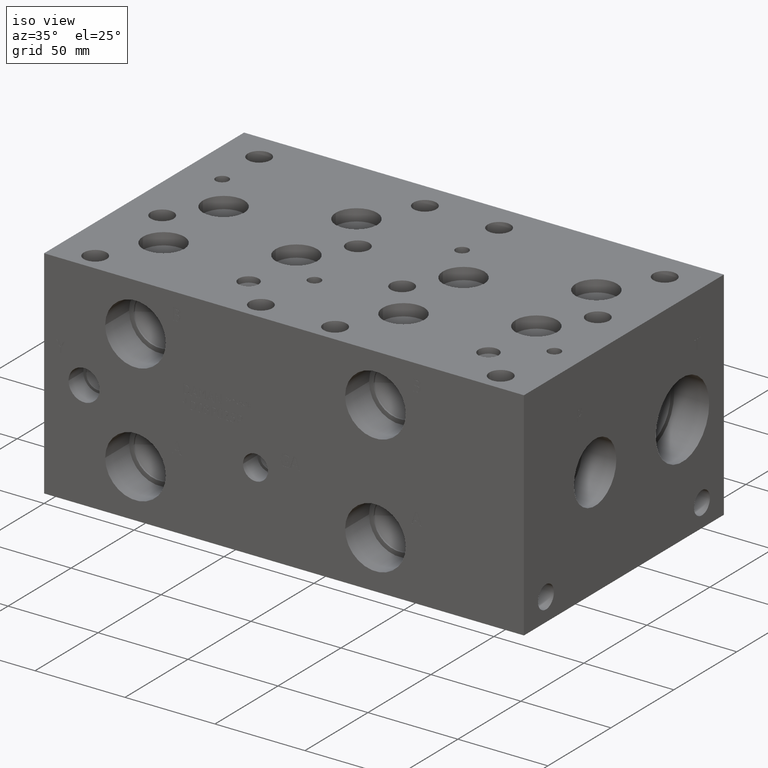
[diagram: clean part render]
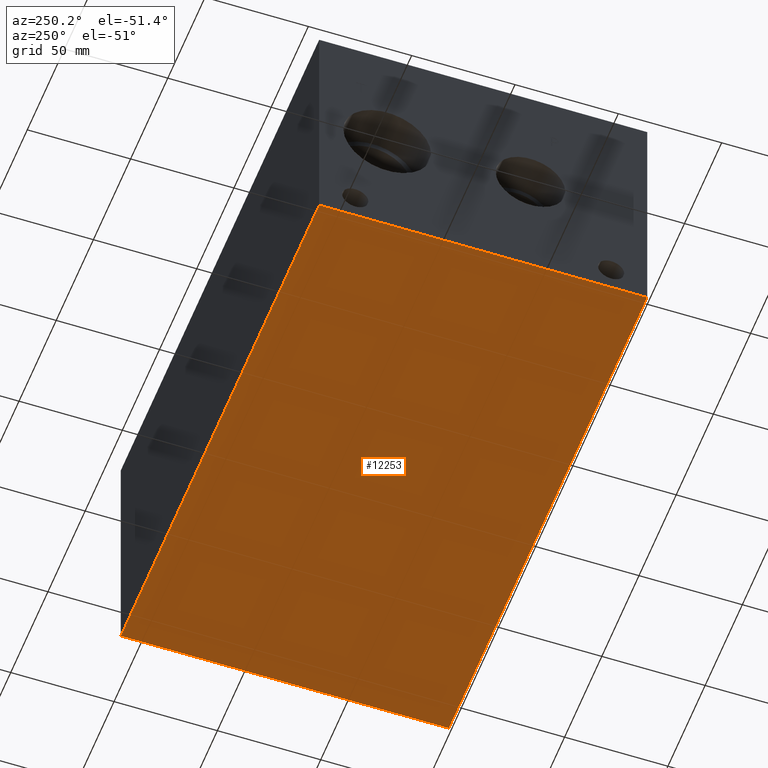
[diagram: tour spotlight — one face highlighted and labeled with its STEP entity id]
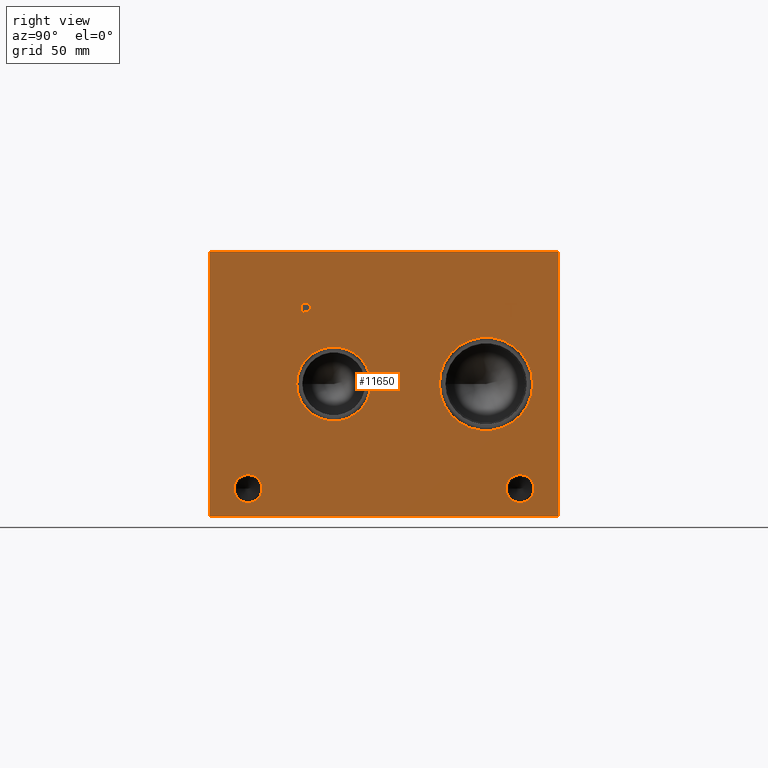
[diagram: tour spotlight — one face highlighted and labeled with its STEP entity id]
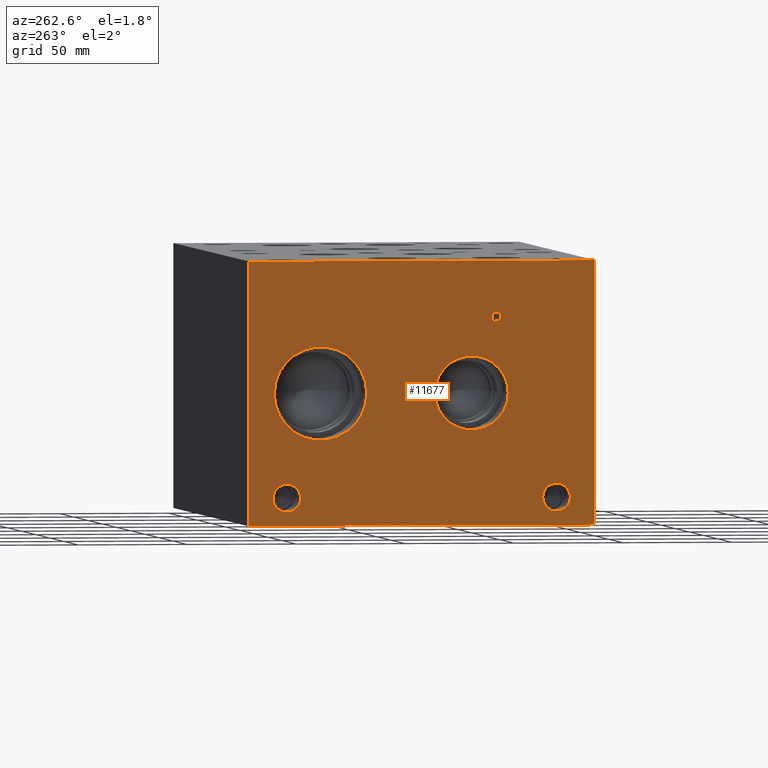
[diagram: tour spotlight — one face highlighted and labeled with its STEP entity id]
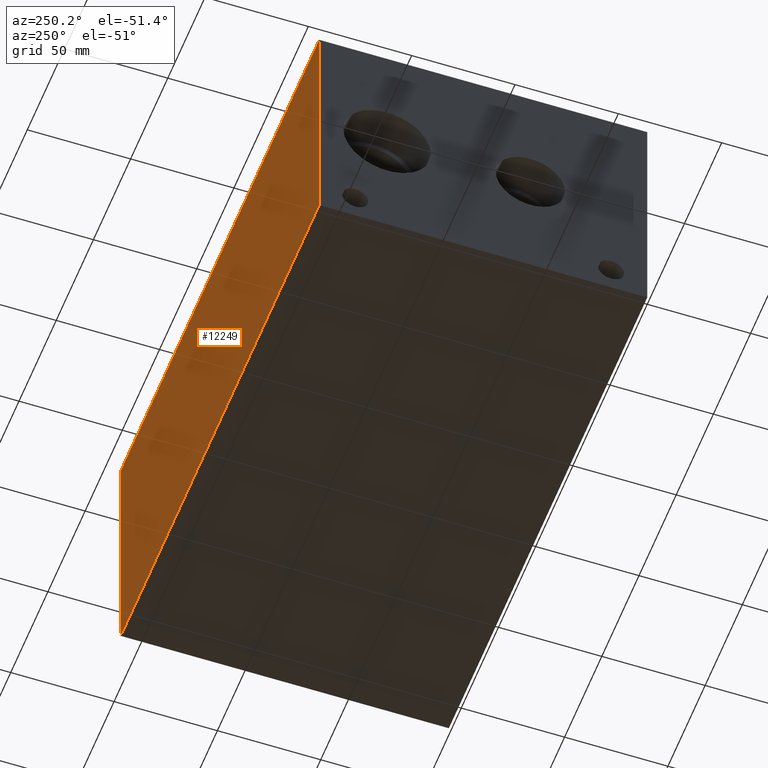
[diagram: tour spotlight — one face highlighted and labeled with its STEP entity id]
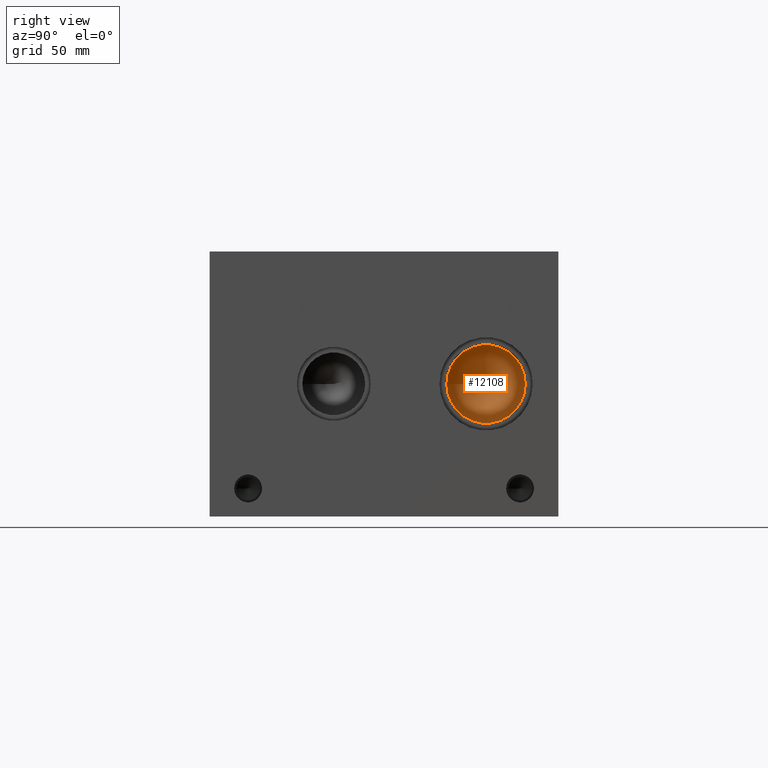
[diagram: tour spotlight — one face highlighted and labeled with its STEP entity id]
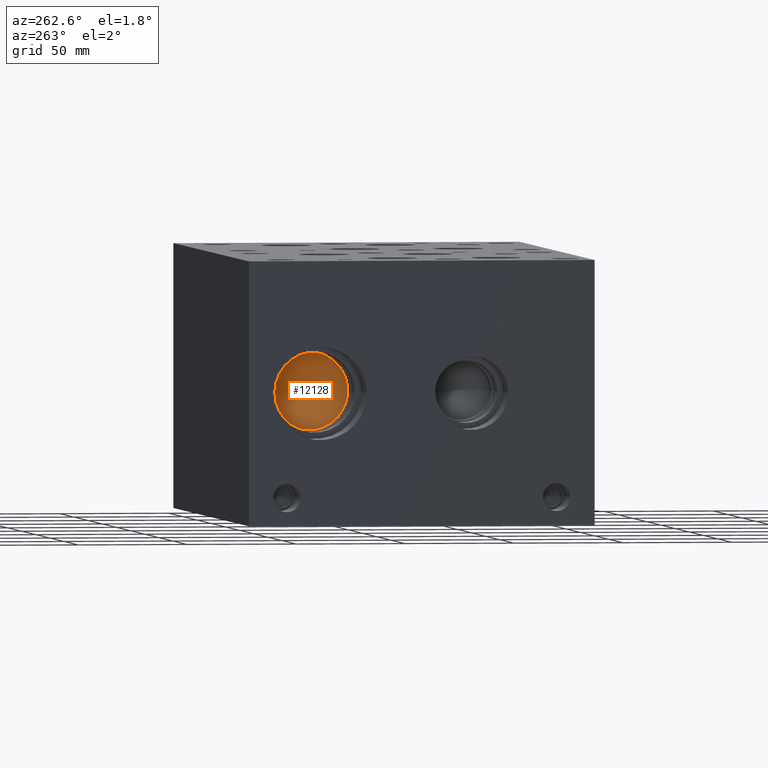
[diagram: tour spotlight — one face highlighted and labeled with its STEP entity id]
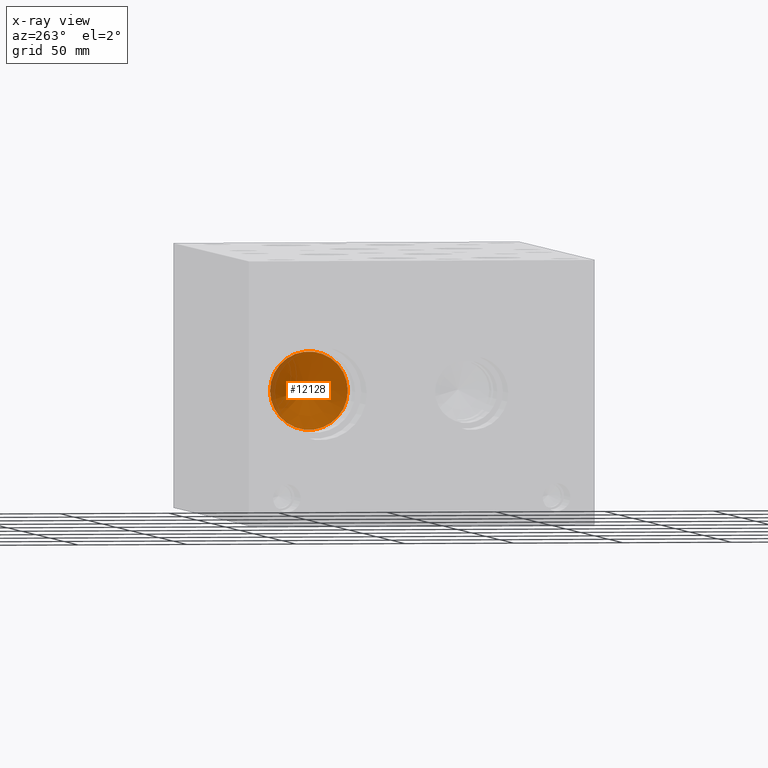
[diagram: x-ray of the same camera — body ghosted, this tour face saturated]
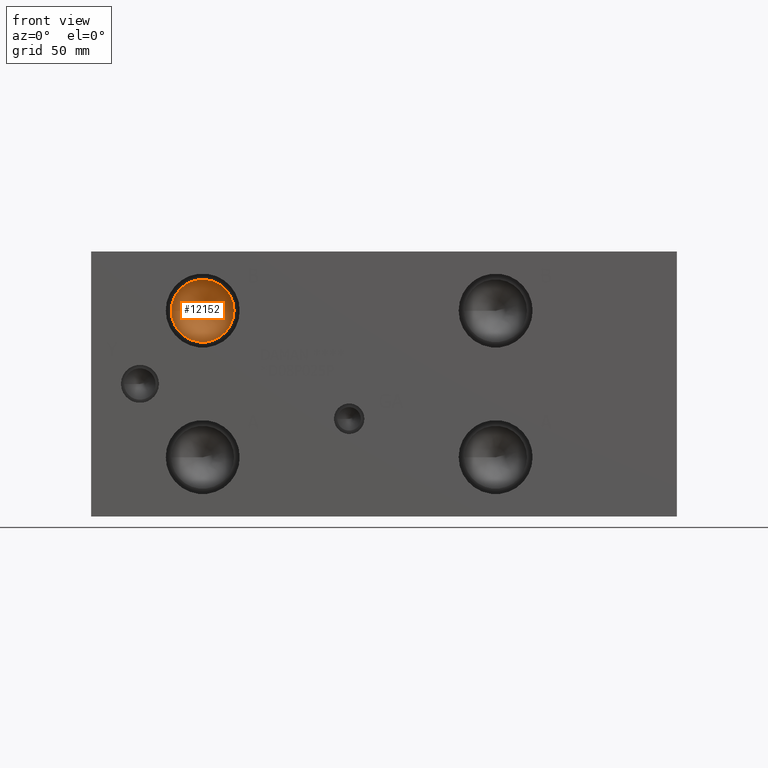
[diagram: tour spotlight — one face highlighted and labeled with its STEP entity id]
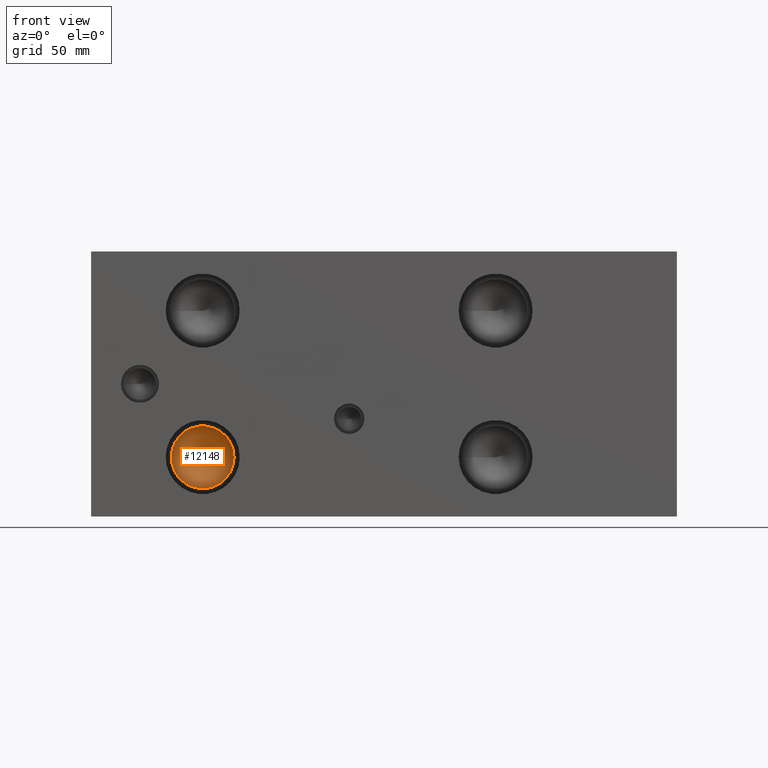
[diagram: tour spotlight — one face highlighted and labeled with its STEP entity id]
A machine part: a face-by-face anatomy tour. The part has 630 B-rep faces; the first image is the clean iso view, then the 8 largest visible faces are spotlighted one at a time (largest first), each with its STEP entity span.

Face 1 — auxiliary view, entity #12253. In plain terms, the highlighted planar face has unit normal (0, 0, 1).
Definition (entity closure, byte-faithful):
#1592=FACE_OUTER_BOUND('',#2336,.T.);
#2336=EDGE_LOOP('',(#10795,#10796,#10797,#10798));
#2393=LINE('',#15813,#3513);
#2453=LINE('',#16088,#3573);
#2713=LINE('',#18179,#3833);
#3455=LINE('',#21079,#4575);
#3513=VECTOR('',#13087,10.);
#3573=VECTOR('',#13201,10.);
#3833=VECTOR('',#13607,10.);
#4575=VECTOR('',#15549,10.);
#4625=VERTEX_POINT('',#15811);
#4626=VERTEX_POINT('',#15812);
#4685=VERTEX_POINT('',#16086);
#4686=VERTEX_POINT('',#16087);
#5819=EDGE_CURVE('',#4625,#4626,#2393,.T.);
#5903=EDGE_CURVE('',#4685,#4686,#2453,.T.);
#6353=EDGE_CURVE('',#4686,#4625,#2713,.T.);
#7429=EDGE_CURVE('',#4626,#4685,#3455,.T.);
#10795=ORIENTED_EDGE('',*,*,#6353,.F.);
#10796=ORIENTED_EDGE('',*,*,#5903,.F.);
#10797=ORIENTED_EDGE('',*,*,#7429,.F.);
#10798=ORIENTED_EDGE('',*,*,#5819,.F.);
#11157=PLANE('',#12990);
#12253=ADVANCED_FACE('',(#1592),#11157,.F.);
#12990=AXIS2_PLACEMENT_3D('',#21084,#15557,#15558);
#13087=DIRECTION('',(0.,1.,0.));
#13201=DIRECTION('',(0.,-1.,0.));
#13607=DIRECTION('',(1.,0.,0.));
#15549=DIRECTION('',(-1.,0.,0.));
#15557=DIRECTION('center_axis',(0.,0.,1.));
#15558=DIRECTION('ref_axis',(1.,0.,0.));
#15811=CARTESIAN_POINT('',(266.7,0.,0.));
#15812=CARTESIAN_POINT('',(266.7,158.75,0.));
#15813=CARTESIAN_POINT('',(266.7,0.,0.));
#16086=CARTESIAN_POINT('',(0.,158.75,0.));
#16087=CARTESIAN_POINT('',(0.,0.,0.));
#16088=CARTESIAN_POINT('',(0.,158.75,0.));
#18179=CARTESIAN_POINT('',(0.,0.,0.));
#21079=CARTESIAN_POINT('',(266.7,158.75,0.));
#21084=CARTESIAN_POINT('Origin',(133.35,79.375,0.));

Face 2 — right view, entity #11650. In plain terms, the highlighted planar face has unit normal (1, 0, 0).
Definition (entity closure, byte-faithful):
#128=CIRCLE('',#12287,6.35);
#129=CIRCLE('',#12288,6.35);
#130=CIRCLE('',#12289,6.35);
#131=CIRCLE('',#12290,6.35);
#132=CIRCLE('',#12291,16.8529);
#133=CIRCLE('',#12292,16.8529);
#134=CIRCLE('',#12293,21.2344);
#135=CIRCLE('',#12294,21.2344);
#379=FACE_BOUND('',#1621,.T.);
#380=FACE_BOUND('',#1622,.T.);
#381=FACE_BOUND('',#1623,.T.);
#382=FACE_BOUND('',#1624,.T.);
#383=FACE_BOUND('',#1625,.T.);
#384=FACE_BOUND('',#1626,.T.);
#500=B_SPLINE_CURVE_WITH_KNOTS('',2,(#15713,#15714,#15715,#15716),
 .UNSPECIFIED.,.F.,.F.,(3,1,3),(0.,1.,2.),.UNSPECIFIED.);
#502=B_SPLINE_CURVE_WITH_KNOTS('',2,(#15734,#15735,#15736,#15737),
 .UNSPECIFIED.,.F.,.F.,(3,1,3),(0.,1.,2.),.UNSPECIFIED.);
#504=B_SPLINE_CURVE_WITH_KNOTS('',2,(#15783,#15784,#15785,#15786),
 .UNSPECIFIED.,.F.,.F.,(3,1,3),(0.,1.,2.),.UNSPECIFIED.);
#506=B_SPLINE_CURVE_WITH_KNOTS('',2,(#15801,#15802,#15803,#15804),
 .UNSPECIFIED.,.F.,.F.,(3,1,3),(0.,1.,2.),.UNSPECIFIED.);
#989=FACE_OUTER_BOUND('',#1620,.T.);
#1620=EDGE_LOOP('',(#7551,#7552,#7553,#7554));
#1621=EDGE_LOOP('',(#7555,#7556,#7557,#7558,#7559,#7560,#7561,#7562));
#1622=EDGE_LOOP('',(#7563,#7564));
#1623=EDGE_LOOP('',(#7565,#7566));
#1624=EDGE_LOOP('',(#7567,#7568));
#1625=EDGE_LOOP('',(#7569,#7570));
#1626=EDGE_LOOP('',(#7571,#7572,#7573,#7574,#7575,#7576,#7577,#7578,#7579));
#2337=LINE('',#15563,#3457);
#2341=LINE('',#15571,#3461);
#2344=LINE('',#15577,#3464);
#2347=LINE('',#15583,#3467);
#2350=LINE('',#15589,#3470);
#2353=LINE('',#15595,#3473);
#2356=LINE('',#15601,#3476);
#2359=LINE('',#15606,#3479);
#2377=LINE('',#15746,#3497);
#2380=LINE('',#15752,#3500);
#2383=LINE('',#15758,#3503);
#2386=LINE('',#15764,#3506);
#2389=LINE('',#15770,#3509);
#2393=LINE('',#15813,#3513);
#2394=LINE('',#15815,#3514);
#2395=LINE('',#15817,#3515);
#2396=LINE('',#15818,#3516);
#3457=VECTOR('',#12995,10.);
#3461=VECTOR('',#13001,10.);
#3464=VECTOR('',#13006,10.);
#3467=VECTOR('',#13011,10.);
#3470=VECTOR('',#13016,10.);
#3473=VECTOR('',#13021,10.);
#3476=VECTOR('',#13026,10.);
#3479=VECTOR('',#13031,10.);
#3497=VECTOR('',#13059,10.);
#3500=VECTOR('',#13064,10.);
#3503=VECTOR('',#13069,10.);
#3506=VECTOR('',#13074,10.);
#3509=VECTOR('',#13079,10.);
#3513=VECTOR('',#13087,10.);
#3514=VECTOR('',#13088,10.);
#3515=VECTOR('',#13089,10.);
#3516=VECTOR('',#13090,10.);
#4577=VERTEX_POINT('',#15561);
#4578=VERTEX_POINT('',#15562);
#4581=VERTEX_POINT('',#15570);
#4583=VERTEX_POINT('',#15576);
#4585=VERTEX_POINT('',#15582);
#4587=VERTEX_POINT('',#15588);
#4589=VERTEX_POINT('',#15594);
#4591=VERTEX_POINT('',#15600);
#4607=VERTEX_POINT('',#15711);
#4608=VERTEX_POINT('',#15712);
#4611=VERTEX_POINT('',#15733);
#4613=VERTEX_POINT('',#15745);
#4615=VERTEX_POINT('',#15751);
#4617=VERTEX_POINT('',#15757);
#4619=VERTEX_POINT('',#15763);
#4621=VERTEX_POINT('',#15769);
#4623=VERTEX_POINT('',#15782);
#4625=VERTEX_POINT('',#15811);
#4626=VERTEX_POINT('',#15812);
#4627=VERTEX_POINT('',#15814);
#4628=VERTEX_POINT('',#15816);
#4629=VERTEX_POINT('',#15819);
#4630=VERTEX_POINT('',#15820);
#4631=VERTEX_POINT('',#15823);
#4632=VERTEX_POINT('',#15824);
#4633=VERTEX_POINT('',#15827);
#4634=VERTEX_POINT('',#15828);
#4635=VERTEX_POINT('',#15831);
#4636=VERTEX_POINT('',#15832);
#5747=EDGE_CURVE('',#4577,#4578,#2337,.T.);
#5751=EDGE_CURVE('',#4581,#4577,#2341,.T.);
#5754=EDGE_CURVE('',#4583,#4581,#2344,.T.);
#5757=EDGE_CURVE('',#4585,#4583,#2347,.T.);
#5760=EDGE_CURVE('',#4587,#4585,#2350,.T.);
#5763=EDGE_CURVE('',#4589,#4587,#2353,.T.);
#5766=EDGE_CURVE('',#4591,#4589,#2356,.T.);
#5769=EDGE_CURVE('',#4578,#4591,#2359,.T.);
#5792=EDGE_CURVE('',#4607,#4608,#500,.T.);
#5796=EDGE_CURVE('',#4611,#4607,#502,.T.);
#5799=EDGE_CURVE('',#4613,#4611,#2377,.T.);
#5802=EDGE_CURVE('',#4615,#4613,#2380,.T.);
#5805=EDGE_CURVE('',#4617,#4615,#2383,.T.);
#5808=EDGE_CURVE('',#4619,#4617,#2386,.T.);
#5811=EDGE_CURVE('',#4621,#4619,#2389,.T.);
#5814=EDGE_CURVE('',#4623,#4621,#504,.T.);
#5817=EDGE_CURVE('',#4608,#4623,#506,.T.);
#5819=EDGE_CURVE('',#4625,#4626,#2393,.T.);
#5820=EDGE_CURVE('',#4626,#4627,#2394,.T.);
#5821=EDGE_CURVE('',#4628,#4627,#2395,.T.);
#5822=EDGE_CURVE('',#4625,#4628,#2396,.T.);
#5823=EDGE_CURVE('',#4629,#4630,#128,.T.);
#5824=EDGE_CURVE('',#4630,#4629,#129,.T.);
#5825=EDGE_CURVE('',#4631,#4632,#130,.T.);
#5826=EDGE_CURVE('',#4632,#4631,#131,.T.);
#5827=EDGE_CURVE('',#4633,#4634,#132,.T.);
#5828=EDGE_CURVE('',#4634,#4633,#133,.T.);
#5829=EDGE_CURVE('',#4635,#4636,#134,.T.);
#5830=EDGE_CURVE('',#4636,#4635,#135,.T.);
#7551=ORIENTED_EDGE('',*,*,#5819,.T.);
#7552=ORIENTED_EDGE('',*,*,#5820,.T.);
#7553=ORIENTED_EDGE('',*,*,#5821,.F.);
#7554=ORIENTED_EDGE('',*,*,#5822,.F.);
#7555=ORIENTED_EDGE('',*,*,#5747,.T.);
#7556=ORIENTED_EDGE('',*,*,#5769,.T.);
#7557=ORIENTED_EDGE('',*,*,#5766,.T.);
#7558=ORIENTED_EDGE('',*,*,#5763,.T.);
#7559=ORIENTED_EDGE('',*,*,#5760,.T.);
#7560=ORIENTED_EDGE('',*,*,#5757,.T.);
#7561=ORIENTED_EDGE('',*,*,#5754,.T.);
#7562=ORIENTED_EDGE('',*,*,#5751,.T.);
#7563=ORIENTED_EDGE('',*,*,#5823,.T.);
#7564=ORIENTED_EDGE('',*,*,#5824,.T.);
#7565=ORIENTED_EDGE('',*,*,#5825,.T.);
#7566=ORIENTED_EDGE('',*,*,#5826,.T.);
#7567=ORIENTED_EDGE('',*,*,#5827,.T.);
#7568=ORIENTED_EDGE('',*,*,#5828,.T.);
#7569=ORIENTED_EDGE('',*,*,#5829,.T.);
#7570=ORIENTED_EDGE('',*,*,#5830,.T.);
#7571=ORIENTED_EDGE('',*,*,#5792,.T.);
#7572=ORIENTED_EDGE('',*,*,#5817,.T.);
#7573=ORIENTED_EDGE('',*,*,#5814,.T.);
#7574=ORIENTED_EDGE('',*,*,#5811,.T.);
#7575=ORIENTED_EDGE('',*,*,#5808,.T.);
#7576=ORIENTED_EDGE('',*,*,#5805,.T.);
#7577=ORIENTED_EDGE('',*,*,#5802,.T.);
#7578=ORIENTED_EDGE('',*,*,#5799,.T.);
#7579=ORIENTED_EDGE('',*,*,#5796,.T.);
#10817=PLANE('',#12286);
#11650=ADVANCED_FACE('',(#989,#379,#380,#381,#382,#383,#384),#10817,.T.);
#12286=AXIS2_PLACEMENT_3D('',#15810,#13085,#13086);
#12287=AXIS2_PLACEMENT_3D('',#15821,#13091,#13092);
#12288=AXIS2_PLACEMENT_3D('',#15822,#13093,#13094);
#12289=AXIS2_PLACEMENT_3D('',#15825,#13095,#13096);
#12290=AXIS2_PLACEMENT_3D('',#15826,#13097,#13098);
#12291=AXIS2_PLACEMENT_3D('',#15829,#13099,#13100);
#12292=AXIS2_PLACEMENT_3D('',#15830,#13101,#13102);
#12293=AXIS2_PLACEMENT_3D('',#15833,#13103,#13104);
#12294=AXIS2_PLACEMENT_3D('',#15834,#13105,#13106);
#12995=DIRECTION('',(0.,-1.,0.));
#13001=DIRECTION('',(0.,0.,-1.));
#13006=DIRECTION('',(0.,-1.,0.));
#13011=DIRECTION('',(0.,0.,-1.));
#13016=DIRECTION('',(0.,1.,0.));
#13021=DIRECTION('',(0.,0.,1.));
#13026=DIRECTION('',(0.,-1.,0.));
#13031=DIRECTION('',(0.,0.,1.));
#13059=DIRECTION('',(0.,1.,0.));
#13064=DIRECTION('',(0.,0.,1.));
#13069=DIRECTION('',(0.,-1.,0.));
#13074=DIRECTION('',(0.,0.,-1.));
#13079=DIRECTION('',(0.,-1.,0.));
#13085=DIRECTION('center_axis',(1.,0.,0.));
#13086=DIRECTION('ref_axis',(0.,1.,0.));
#13087=DIRECTION('',(0.,1.,0.));
#13088=DIRECTION('',(0.,0.,1.));
#13089=DIRECTION('',(0.,1.,0.));
#13090=DIRECTION('',(0.,0.,1.));
#13091=DIRECTION('center_axis',(-1.,0.,0.));
#13092=DIRECTION('ref_axis',(0.,1.,0.));
#13093=DIRECTION('center_axis',(-1.,0.,0.));
#13094=DIRECTION('ref_axis',(0.,1.,0.));
#13095=DIRECTION('center_axis',(-1.,0.,0.));
#13096=DIRECTION('ref_axis',(0.,1.,0.));
#13097=DIRECTION('center_axis',(-1.,0.,0.));
#13098=DIRECTION('ref_axis',(0.,1.,0.));
#13099=DIRECTION('center_axis',(-1.,0.,0.));
#13100=DIRECTION('ref_axis',(0.,1.,0.));
#13101=DIRECTION('center_axis',(-1.,0.,0.));
#13102=DIRECTION('ref_axis',(0.,1.,0.));
#13103=DIRECTION('center_axis',(-1.,0.,0.));
#13104=DIRECTION('ref_axis',(0.,1.,0.));
#13105=DIRECTION('center_axis',(-1.,0.,0.));
#13106=DIRECTION('ref_axis',(0.,1.,0.));
#15561=CARTESIAN_POINT('',(266.7,137.690765271453,90.805));
#15562=CARTESIAN_POINT('',(266.7,136.846843079913,90.805));
#15563=CARTESIAN_POINT('',(266.7,68.8453826357265,90.805));
#15570=CARTESIAN_POINT('',(266.7,137.690765271453,96.4037033194816));
#15571=CARTESIAN_POINT('',(266.7,137.690765271453,48.2018516597408));
#15576=CARTESIAN_POINT('',(266.7,139.821154218388,96.4037033194816));
#15577=CARTESIAN_POINT('',(266.7,69.910577109194,96.4037033194816));
#15582=CARTESIAN_POINT('',(266.7,139.821154218388,97.1549999046326));
#15583=CARTESIAN_POINT('',(266.7,139.821154218388,48.5774999523163));
#15588=CARTESIAN_POINT('',(266.7,134.716454132978,97.1549999046326));
#15589=CARTESIAN_POINT('',(266.7,67.3582270664892,97.1549999046326));
#15594=CARTESIAN_POINT('',(266.7,134.716454132978,96.4037033194816));
#15595=CARTESIAN_POINT('',(266.7,134.716454132978,48.2018516597408));
#15600=CARTESIAN_POINT('',(266.7,136.846843079913,96.4037033194816));
#15601=CARTESIAN_POINT('',(266.7,68.4234215399567,96.4037033194816));
#15606=CARTESIAN_POINT('',(266.7,136.846843079913,45.4025));
#15711=CARTESIAN_POINT('',(266.7,45.1501672023594,96.7587681439707));
#15712=CARTESIAN_POINT('',(266.7,45.906609654532,95.240737372604));
#15713=CARTESIAN_POINT('Ctrl Pts',(266.7,45.1501672023594,96.7587681439707));
#15714=CARTESIAN_POINT('Ctrl Pts',(266.7,45.5052320268486,96.5169123939564));
#15715=CARTESIAN_POINT('Ctrl Pts',(266.7,45.906609654532,95.7707616758269));
#15716=CARTESIAN_POINT('Ctrl Pts',(266.7,45.906609654532,95.240737372604));
#15733=CARTESIAN_POINT('',(266.7,43.4880521543883,97.1549999046326));
#15734=CARTESIAN_POINT('Ctrl Pts',(266.7,43.4880521543883,97.1549999046326));
#15735=CARTESIAN_POINT('Ctrl Pts',(266.7,44.0540975267624,97.1549999046326));
#15736=CARTESIAN_POINT('Ctrl Pts',(266.7,44.846561048086,96.9697486918556));
#15737=CARTESIAN_POINT('Ctrl Pts',(266.7,45.1501672023594,96.7587681439707));
#15745=CARTESIAN_POINT('',(266.7,41.8928333776978,97.1549999046326));
#15746=CARTESIAN_POINT('',(266.7,20.9464166888489,97.1549999046326));
#15751=CARTESIAN_POINT('',(266.7,41.8928333776978,90.805));
#15752=CARTESIAN_POINT('',(266.7,41.8928333776978,45.4025));
#15757=CARTESIAN_POINT('',(266.7,42.7367555692373,90.805));
#15758=CARTESIAN_POINT('',(266.7,21.3683777846186,90.805));
#15763=CARTESIAN_POINT('',(266.7,42.7367555692373,93.1720988299279));
#15764=CARTESIAN_POINT('',(266.7,42.7367555692373,46.5860494149639));
#15769=CARTESIAN_POINT('',(266.7,43.4520310852372,93.1720988299279));
#15770=CARTESIAN_POINT('',(266.7,21.7260155426186,93.1720988299279));
#15782=CARTESIAN_POINT('',(266.7,45.3508560162011,93.8307698086904));
#15783=CARTESIAN_POINT('Ctrl Pts',(266.7,45.3508560162011,93.8307698086904));
#15784=CARTESIAN_POINT('Ctrl Pts',(266.7,45.0215205268198,93.5065801863307));
#15785=CARTESIAN_POINT('Ctrl Pts',(266.7,44.1312855320861,93.1720988299279));
#15786=CARTESIAN_POINT('Ctrl Pts',(266.7,43.4520310852372,93.1720988299279));
#15801=CARTESIAN_POINT('Ctrl Pts',(266.7,45.906609654532,95.240737372604));
#15802=CARTESIAN_POINT('Ctrl Pts',(266.7,45.906609654532,94.8290680108774));
#15803=CARTESIAN_POINT('Ctrl Pts',(266.7,45.6132952343018,94.0880631597695));
#15804=CARTESIAN_POINT('Ctrl Pts',(266.7,45.3508560162011,93.8307698086904));
#15810=CARTESIAN_POINT('Origin',(266.7,0.,0.));
#15811=CARTESIAN_POINT('',(266.7,0.,0.));
#15812=CARTESIAN_POINT('',(266.7,158.75,0.));
#15813=CARTESIAN_POINT('',(266.7,0.,0.));
#15814=CARTESIAN_POINT('',(266.7,158.75,120.65));
#15815=CARTESIAN_POINT('',(266.7,158.75,0.));
#15816=CARTESIAN_POINT('',(266.7,0.,120.65));
#15817=CARTESIAN_POINT('',(266.7,0.,120.65));
#15818=CARTESIAN_POINT('',(266.7,0.,0.));
#15819=CARTESIAN_POINT('',(266.7,147.6502,12.7));
#15820=CARTESIAN_POINT('',(266.7,134.9502,12.7));
#15821=CARTESIAN_POINT('Origin',(266.7,141.3002,12.7));
#15822=CARTESIAN_POINT('Origin',(266.7,141.3002,12.7));
#15823=CARTESIAN_POINT('',(266.7,23.8252,12.7));
#15824=CARTESIAN_POINT('',(266.7,11.1252,12.7));
#15825=CARTESIAN_POINT('Origin',(266.7,17.4752,12.7));
#15826=CARTESIAN_POINT('Origin',(266.7,17.4752,12.7));
#15827=CARTESIAN_POINT('',(266.7,73.3425,60.325));
#15828=CARTESIAN_POINT('',(266.7,39.6367,60.325));
#15829=CARTESIAN_POINT('Origin',(266.7,56.4896,60.325));
#15830=CARTESIAN_POINT('Origin',(266.7,56.4896,60.325));
#15831=CARTESIAN_POINT('',(266.7,147.066,60.325));
#15832=CARTESIAN_POINT('',(266.7,104.5972,60.325));
#15833=CARTESIAN_POINT('Origin',(266.7,125.8316,60.325));
#15834=CARTESIAN_POINT('Origin',(266.7,125.8316,60.325));

Face 3 — auxiliary view, entity #11677. In plain terms, the highlighted planar face has unit normal (-1, 0, 0).
Definition (entity closure, byte-faithful):
#136=CIRCLE('',#12314,6.35);
#137=CIRCLE('',#12315,6.35);
#138=CIRCLE('',#12316,6.35);
#139=CIRCLE('',#12317,6.35);
#140=CIRCLE('',#12318,16.8529);
#141=CIRCLE('',#12319,16.8529);
#142=CIRCLE('',#12320,21.2344);
#143=CIRCLE('',#12321,21.2344);
#386=FACE_BOUND('',#1655,.T.);
#387=FACE_BOUND('',#1656,.T.);
#388=FACE_BOUND('',#1657,.T.);
#389=FACE_BOUND('',#1658,.T.);
#390=FACE_BOUND('',#1659,.T.);
#391=FACE_BOUND('',#1660,.T.);
#516=B_SPLINE_CURVE_WITH_KNOTS('',2,(#15988,#15989,#15990,#15991),
 .UNSPECIFIED.,.F.,.F.,(3,1,3),(0.,1.,2.),.UNSPECIFIED.);
#518=B_SPLINE_CURVE_WITH_KNOTS('',2,(#16009,#16010,#16011,#16012),
 .UNSPECIFIED.,.F.,.F.,(3,1,3),(0.,1.,2.),.UNSPECIFIED.);
#520=B_SPLINE_CURVE_WITH_KNOTS('',2,(#16058,#16059,#16060,#16061),
 .UNSPECIFIED.,.F.,.F.,(3,1,3),(0.,1.,2.),.UNSPECIFIED.);
#522=B_SPLINE_CURVE_WITH_KNOTS('',2,(#16076,#16077,#16078,#16079),
 .UNSPECIFIED.,.F.,.F.,(3,1,3),(0.,1.,2.),.UNSPECIFIED.);
#1016=FACE_OUTER_BOUND('',#1654,.T.);
#1654=EDGE_LOOP('',(#7700,#7701,#7702,#7703));
#1655=EDGE_LOOP('',(#7704,#7705,#7706,#7707,#7708,#7709,#7710,#7711));
#1656=EDGE_LOOP('',(#7712,#7713));
#1657=EDGE_LOOP('',(#7714,#7715));
#1658=EDGE_LOOP('',(#7716,#7717));
#1659=EDGE_LOOP('',(#7718,#7719));
#1660=EDGE_LOOP('',(#7720,#7721,#7722,#7723,#7724,#7725,#7726,#7727,#7728));
#2397=LINE('',#15838,#3517);
#2401=LINE('',#15846,#3521);
#2404=LINE('',#15852,#3524);
#2407=LINE('',#15858,#3527);
#2410=LINE('',#15864,#3530);
#2413=LINE('',#15870,#3533);
#2416=LINE('',#15876,#3536);
#2419=LINE('',#15881,#3539);
#2437=LINE('',#16021,#3557);
#2440=LINE('',#16027,#3560);
#2443=LINE('',#16033,#3563);
#2446=LINE('',#16039,#3566);
#2449=LINE('',#16045,#3569);
#2453=LINE('',#16088,#3573);
#2454=LINE('',#16090,#3574);
#2455=LINE('',#16092,#3575);
#2456=LINE('',#16093,#3576);
#3517=VECTOR('',#13109,10.);
#3521=VECTOR('',#13115,10.);
#3524=VECTOR('',#13120,10.);
#3527=VECTOR('',#13125,10.);
#3530=VECTOR('',#13130,10.);
#3533=VECTOR('',#13135,10.);
#3536=VECTOR('',#13140,10.);
#3539=VECTOR('',#13145,10.);
#3557=VECTOR('',#13173,10.);
#3560=VECTOR('',#13178,10.);
#3563=VECTOR('',#13183,10.);
#3566=VECTOR('',#13188,10.);
#3569=VECTOR('',#13193,10.);
#3573=VECTOR('',#13201,10.);
#3574=VECTOR('',#13202,10.);
#3575=VECTOR('',#13203,10.);
#3576=VECTOR('',#13204,10.);
#4637=VERTEX_POINT('',#15836);
#4638=VERTEX_POINT('',#15837);
#4641=VERTEX_POINT('',#15845);
#4643=VERTEX_POINT('',#15851);
#4645=VERTEX_POINT('',#15857);
#4647=VERTEX_POINT('',#15863);
#4649=VERTEX_POINT('',#15869);
#4651=VERTEX_POINT('',#15875);
#4667=VERTEX_POINT('',#15986);
#4668=VERTEX_POINT('',#15987);
#4671=VERTEX_POINT('',#16008);
#4673=VERTEX_POINT('',#16020);
#4675=VERTEX_POINT('',#16026);
#4677=VERTEX_POINT('',#16032);
#4679=VERTEX_POINT('',#16038);
#4681=VERTEX_POINT('',#16044);
#4683=VERTEX_POINT('',#16057);
#4685=VERTEX_POINT('',#16086);
#4686=VERTEX_POINT('',#16087);
#4687=VERTEX_POINT('',#16089);
#4688=VERTEX_POINT('',#16091);
#4689=VERTEX_POINT('',#16094);
#4690=VERTEX_POINT('',#16095);
#4691=VERTEX_POINT('',#16098);
#4692=VERTEX_POINT('',#16099);
#4693=VERTEX_POINT('',#16102);
#4694=VERTEX_POINT('',#16103);
#4695=VERTEX_POINT('',#16106);
#4696=VERTEX_POINT('',#16107);
#5831=EDGE_CURVE('',#4637,#4638,#2397,.T.);
#5835=EDGE_CURVE('',#4641,#4637,#2401,.T.);
#5838=EDGE_CURVE('',#4643,#4641,#2404,.T.);
#5841=EDGE_CURVE('',#4645,#4643,#2407,.T.);
#5844=EDGE_CURVE('',#4647,#4645,#2410,.T.);
#5847=EDGE_CURVE('',#4649,#4647,#2413,.T.);
#5850=EDGE_CURVE('',#4651,#4649,#2416,.T.);
#5853=EDGE_CURVE('',#4638,#4651,#2419,.T.);
#5876=EDGE_CURVE('',#4667,#4668,#516,.T.);
#5880=EDGE_CURVE('',#4671,#4667,#518,.T.);
#5883=EDGE_CURVE('',#4673,#4671,#2437,.T.);
#5886=EDGE_CURVE('',#4675,#4673,#2440,.T.);
#5889=EDGE_CURVE('',#4677,#4675,#2443,.T.);
#5892=EDGE_CURVE('',#4679,#4677,#2446,.T.);
#5895=EDGE_CURVE('',#4681,#4679,#2449,.T.);
#5898=EDGE_CURVE('',#4683,#4681,#520,.T.);
#5901=EDGE_CURVE('',#4668,#4683,#522,.T.);
#5903=EDGE_CURVE('',#4685,#4686,#2453,.T.);
#5904=EDGE_CURVE('',#4686,#4687,#2454,.T.);
#5905=EDGE_CURVE('',#4688,#4687,#2455,.T.);
#5906=EDGE_CURVE('',#4685,#4688,#2456,.T.);
#5907=EDGE_CURVE('',#4689,#4690,#136,.T.);
#5908=EDGE_CURVE('',#4690,#4689,#137,.T.);
#5909=EDGE_CURVE('',#4691,#4692,#138,.T.);
#5910=EDGE_CURVE('',#4692,#4691,#139,.T.);
#5911=EDGE_CURVE('',#4693,#4694,#140,.T.);
#5912=EDGE_CURVE('',#4694,#4693,#141,.T.);
#5913=EDGE_CURVE('',#4695,#4696,#142,.T.);
#5914=EDGE_CURVE('',#4696,#4695,#143,.T.);
#7700=ORIENTED_EDGE('',*,*,#5903,.T.);
#7701=ORIENTED_EDGE('',*,*,#5904,.T.);
#7702=ORIENTED_EDGE('',*,*,#5905,.F.);
#7703=ORIENTED_EDGE('',*,*,#5906,.F.);
#7704=ORIENTED_EDGE('',*,*,#5831,.T.);
#7705=ORIENTED_EDGE('',*,*,#5853,.T.);
#7706=ORIENTED_EDGE('',*,*,#5850,.T.);
#7707=ORIENTED_EDGE('',*,*,#5847,.T.);
#7708=ORIENTED_EDGE('',*,*,#5844,.T.);
#7709=ORIENTED_EDGE('',*,*,#5841,.T.);
#7710=ORIENTED_EDGE('',*,*,#5838,.T.);
#7711=ORIENTED_EDGE('',*,*,#5835,.T.);
#7712=ORIENTED_EDGE('',*,*,#5907,.T.);
#7713=ORIENTED_EDGE('',*,*,#5908,.T.);
#7714=ORIENTED_EDGE('',*,*,#5909,.T.);
#7715=ORIENTED_EDGE('',*,*,#5910,.T.);
#7716=ORIENTED_EDGE('',*,*,#5911,.T.);
#7717=ORIENTED_EDGE('',*,*,#5912,.T.);
#7718=ORIENTED_EDGE('',*,*,#5913,.T.);
#7719=ORIENTED_EDGE('',*,*,#5914,.T.);
#7720=ORIENTED_EDGE('',*,*,#5876,.T.);
#7721=ORIENTED_EDGE('',*,*,#5901,.T.);
#7722=ORIENTED_EDGE('',*,*,#5898,.T.);
#7723=ORIENTED_EDGE('',*,*,#5895,.T.);
#7724=ORIENTED_EDGE('',*,*,#5892,.T.);
#7725=ORIENTED_EDGE('',*,*,#5889,.T.);
#7726=ORIENTED_EDGE('',*,*,#5886,.T.);
#7727=ORIENTED_EDGE('',*,*,#5883,.T.);
#7728=ORIENTED_EDGE('',*,*,#5880,.T.);
#10836=PLANE('',#12313);
#11677=ADVANCED_FACE('',(#1016,#386,#387,#388,#389,#390,#391),#10836,.T.);
#12313=AXIS2_PLACEMENT_3D('',#16085,#13199,#13200);
#12314=AXIS2_PLACEMENT_3D('',#16096,#13205,#13206);
#12315=AXIS2_PLACEMENT_3D('',#16097,#13207,#13208);
#12316=AXIS2_PLACEMENT_3D('',#16100,#13209,#13210);
#12317=AXIS2_PLACEMENT_3D('',#16101,#13211,#13212);
#12318=AXIS2_PLACEMENT_3D('',#16104,#13213,#13214);
#12319=AXIS2_PLACEMENT_3D('',#16105,#13215,#13216);
#12320=AXIS2_PLACEMENT_3D('',#16108,#13217,#13218);
#12321=AXIS2_PLACEMENT_3D('',#16109,#13219,#13220);
#13109=DIRECTION('',(0.,1.,0.));
#13115=DIRECTION('',(0.,3.17280044688052E-15,-1.));
#13120=DIRECTION('',(0.,1.,0.));
#13125=DIRECTION('',(0.,2.36438827822332E-14,-1.));
#13130=DIRECTION('',(0.,-1.,-3.47984565141734E-15));
#13135=DIRECTION('',(0.,-2.36438827822327E-14,1.));
#13140=DIRECTION('',(0.,1.,0.));
#13145=DIRECTION('',(0.,-3.17280044688052E-15,1.));
#13173=DIRECTION('',(0.,-1.,0.));
#13178=DIRECTION('',(0.,-2.79741238752512E-15,1.));
#13183=DIRECTION('',(0.,1.,0.));
#13188=DIRECTION('',(0.,3.75218139805001E-15,-1.));
#13193=DIRECTION('',(0.,1.,0.));
#13199=DIRECTION('center_axis',(-1.,0.,0.));
#13200=DIRECTION('ref_axis',(0.,-1.,0.));
#13201=DIRECTION('',(0.,-1.,0.));
#13202=DIRECTION('',(0.,0.,1.));
#13203=DIRECTION('',(0.,-1.,0.));
#13204=DIRECTION('',(0.,0.,1.));
#13205=DIRECTION('center_axis',(1.,0.,0.));
#13206=DIRECTION('ref_axis',(0.,1.,0.));
#13207=DIRECTION('center_axis',(1.,0.,0.));
#13208=DIRECTION('ref_axis',(0.,1.,0.));
#13209=DIRECTION('center_axis',(1.,0.,0.));
#13210=DIRECTION('ref_axis',(0.,1.,0.));
#13211=DIRECTION('center_axis',(1.,0.,0.));
#13212=DIRECTION('ref_axis',(0.,1.,0.));
#13213=DIRECTION('center_axis',(1.,0.,0.));
#13214=DIRECTION('ref_axis',(0.,1.,0.));
#13215=DIRECTION('center_axis',(1.,0.,0.));
#13216=DIRECTION('ref_axis',(0.,1.,0.));
#13217=DIRECTION('center_axis',(1.,0.,0.));
#13218=DIRECTION('ref_axis',(0.,1.,0.));
#13219=DIRECTION('center_axis',(1.,0.,0.));
#13220=DIRECTION('ref_axis',(0.,1.,0.));
#15836=CARTESIAN_POINT('',(0.,138.102434728547,90.805));
#15837=CARTESIAN_POINT('',(0.,138.946356920087,90.805));
#15838=CARTESIAN_POINT('',(0.,148.426217364273,90.805));
#15845=CARTESIAN_POINT('',(0.,138.102434728547,96.4037033194816));
#15846=CARTESIAN_POINT('',(0.,138.102434728547,48.2018516597407));
#15851=CARTESIAN_POINT('',(0.,135.972045781612,96.4037033194816));
#15852=CARTESIAN_POINT('',(0.,147.361022890806,96.4037033194816));
#15857=CARTESIAN_POINT('',(0.,135.972045781612,97.1549999046326));
#15858=CARTESIAN_POINT('',(0.,135.972045781613,48.577499952316));
#15863=CARTESIAN_POINT('',(0.,141.076745867022,97.1549999046326));
#15864=CARTESIAN_POINT('',(0.,149.913372933511,97.1549999046326));
#15869=CARTESIAN_POINT('',(0.,141.076745867022,96.4037033194816));
#15870=CARTESIAN_POINT('',(0.,141.076745867023,48.2018516597406));
#15875=CARTESIAN_POINT('',(0.,138.946356920087,96.4037033194816));
#15876=CARTESIAN_POINT('',(0.,148.848178460043,96.4037033194816));
#15881=CARTESIAN_POINT('',(0.,138.946356920087,45.4025));
#15986=CARTESIAN_POINT('',(0.,43.6990327976406,96.7587681439707));
#15987=CARTESIAN_POINT('',(0.,42.942590345468,95.2407373726039));
#15988=CARTESIAN_POINT('Ctrl Pts',(0.,43.6990327976406,96.7587681439707));
#15989=CARTESIAN_POINT('Ctrl Pts',(0.,43.3439679731514,96.5169123939563));
#15990=CARTESIAN_POINT('Ctrl Pts',(0.,42.942590345468,95.7707616758269));
#15991=CARTESIAN_POINT('Ctrl Pts',(0.,42.942590345468,95.2407373726039));
#16008=CARTESIAN_POINT('',(0.,45.3611478456117,97.1549999046326));
#16009=CARTESIAN_POINT('Ctrl Pts',(0.,45.3611478456117,97.1549999046326));
#16010=CARTESIAN_POINT('Ctrl Pts',(0.,44.7951024732376,97.1549999046325));
#16011=CARTESIAN_POINT('Ctrl Pts',(0.,44.0026389519139,96.9697486918556));
#16012=CARTESIAN_POINT('Ctrl Pts',(0.,43.6990327976406,96.7587681439707));
#16020=CARTESIAN_POINT('',(0.,46.9563666223022,97.1549999046326));
#16021=CARTESIAN_POINT('',(0.,102.853183311151,97.1549999046326));
#16026=CARTESIAN_POINT('',(0.,46.9563666223022,90.805));
#16027=CARTESIAN_POINT('',(0.,46.9563666223023,45.4024999999998));
#16032=CARTESIAN_POINT('',(0.,46.1124444307627,90.805));
#16033=CARTESIAN_POINT('',(0.,102.431222215381,90.805));
#16038=CARTESIAN_POINT('',(0.,46.1124444307627,93.1720988299278));
#16039=CARTESIAN_POINT('',(0.,46.1124444307629,46.5860494149637));
#16044=CARTESIAN_POINT('',(0.,45.3971689147628,93.1720988299278));
#16045=CARTESIAN_POINT('',(0.,102.073584457381,93.1720988299278));
#16057=CARTESIAN_POINT('',(0.,43.4983439837989,93.8307698086904));
#16058=CARTESIAN_POINT('Ctrl Pts',(0.,43.4983439837989,93.8307698086904));
#16059=CARTESIAN_POINT('Ctrl Pts',(0.,43.8276794731802,93.5065801863307));
#16060=CARTESIAN_POINT('Ctrl Pts',(0.,44.7179144679139,93.1720988299278));
#16061=CARTESIAN_POINT('Ctrl Pts',(0.,45.3971689147628,93.1720988299278));
#16076=CARTESIAN_POINT('Ctrl Pts',(0.,42.942590345468,95.2407373726039));
#16077=CARTESIAN_POINT('Ctrl Pts',(0.,42.942590345468,94.8290680108774));
#16078=CARTESIAN_POINT('Ctrl Pts',(0.,43.2359047656982,94.0880631597695));
#16079=CARTESIAN_POINT('Ctrl Pts',(0.,43.4983439837989,93.8307698086904));
#16085=CARTESIAN_POINT('Origin',(0.,158.75,0.));
#16086=CARTESIAN_POINT('',(0.,158.75,0.));
#16087=CARTESIAN_POINT('',(0.,0.,0.));
#16088=CARTESIAN_POINT('',(0.,158.75,0.));
#16089=CARTESIAN_POINT('',(0.,0.,120.65));
#16090=CARTESIAN_POINT('',(0.,0.,0.));
#16091=CARTESIAN_POINT('',(0.,158.75,120.65));
#16092=CARTESIAN_POINT('',(0.,158.75,120.65));
#16093=CARTESIAN_POINT('',(0.,158.75,0.));
#16094=CARTESIAN_POINT('',(0.,23.8252,12.7));
#16095=CARTESIAN_POINT('',(0.,11.1252,12.7));
#16096=CARTESIAN_POINT('Origin',(0.,17.4752,12.7));
#16097=CARTESIAN_POINT('Origin',(0.,17.4752,12.7));
#16098=CARTESIAN_POINT('',(0.,147.6502,12.7));
#16099=CARTESIAN_POINT('',(0.,134.9502,12.7));
#16100=CARTESIAN_POINT('Origin',(0.,141.3002,12.7));
#16101=CARTESIAN_POINT('Origin',(0.,141.3002,12.7));
#16102=CARTESIAN_POINT('',(0.,73.3425,60.325));
#16103=CARTESIAN_POINT('',(0.,39.6367,60.325));
#16104=CARTESIAN_POINT('Origin',(0.,56.4896,60.325));
#16105=CARTESIAN_POINT('Origin',(0.,56.4896,60.325));
#16106=CARTESIAN_POINT('',(0.,147.066,60.325));
#16107=CARTESIAN_POINT('',(0.,104.5972,60.325));
#16108=CARTESIAN_POINT('Origin',(0.,125.8316,60.325));
#16109=CARTESIAN_POINT('Origin',(0.,125.8316,60.325));

Face 4 — auxiliary view, entity #12249. In plain terms, the highlighted planar face has unit normal (0, 1, 0).
Definition (entity closure, byte-faithful):
#1588=FACE_OUTER_BOUND('',#2306,.T.);
#2306=EDGE_LOOP('',(#10725,#10726,#10727,#10728));
#2394=LINE('',#15815,#3514);
#2456=LINE('',#16093,#3576);
#3455=LINE('',#21079,#4575);
#3456=LINE('',#21080,#4576);
#3514=VECTOR('',#13088,10.);
#3576=VECTOR('',#13204,10.);
#4575=VECTOR('',#15549,10.);
#4576=VECTOR('',#15550,10.);
#4626=VERTEX_POINT('',#15812);
#4627=VERTEX_POINT('',#15814);
#4685=VERTEX_POINT('',#16086);
#4688=VERTEX_POINT('',#16091);
#5820=EDGE_CURVE('',#4626,#4627,#2394,.T.);
#5906=EDGE_CURVE('',#4685,#4688,#2456,.T.);
#7429=EDGE_CURVE('',#4626,#4685,#3455,.T.);
#7430=EDGE_CURVE('',#4627,#4688,#3456,.T.);
#10725=ORIENTED_EDGE('',*,*,#7429,.T.);
#10726=ORIENTED_EDGE('',*,*,#5906,.T.);
#10727=ORIENTED_EDGE('',*,*,#7430,.F.);
#10728=ORIENTED_EDGE('',*,*,#5820,.F.);
#11153=PLANE('',#12986);
#12249=ADVANCED_FACE('',(#1588),#11153,.T.);
#12986=AXIS2_PLACEMENT_3D('',#21078,#15547,#15548);
#13088=DIRECTION('',(0.,0.,1.));
#13204=DIRECTION('',(0.,0.,1.));
#15547=DIRECTION('center_axis',(0.,1.,0.));
#15548=DIRECTION('ref_axis',(-1.,0.,0.));
#15549=DIRECTION('',(-1.,0.,0.));
#15550=DIRECTION('',(-1.,0.,0.));
#15812=CARTESIAN_POINT('',(266.7,158.75,0.));
#15814=CARTESIAN_POINT('',(266.7,158.75,120.65));
#15815=CARTESIAN_POINT('',(266.7,158.75,0.));
#16086=CARTESIAN_POINT('',(0.,158.75,0.));
#16091=CARTESIAN_POINT('',(0.,158.75,120.65));
#16093=CARTESIAN_POINT('',(0.,158.75,0.));
#21078=CARTESIAN_POINT('Origin',(266.7,158.75,0.));
#21079=CARTESIAN_POINT('',(266.7,158.75,0.));
#21080=CARTESIAN_POINT('',(266.7,158.75,120.65));

Face 5 — right view, entity #12108. In plain terms, the highlighted conical surface has half-angle 60 deg.
Definition (entity closure, byte-faithful):
#84=CONICAL_SURFACE('',#12623,8.9281,1.0471975511966);
#156=CIRCLE('',#12624,17.8562);
#157=CIRCLE('',#12625,17.8562);
#1447=FACE_OUTER_BOUND('',#2139,.T.);
#2139=EDGE_LOOP('',(#10070,#10071,#10072,#10073));
#3341=LINE('',#20344,#4461);
#4461=VECTOR('',#14711,8.9281);
#5485=VERTEX_POINT('',#20340);
#5486=VERTEX_POINT('',#20341);
#5487=VERTEX_POINT('',#20343);
#7093=EDGE_CURVE('',#5485,#5486,#156,.T.);
#7094=EDGE_CURVE('',#5486,#5487,#3341,.T.);
#7095=EDGE_CURVE('',#5486,#5485,#157,.T.);
#10070=ORIENTED_EDGE('',*,*,#7093,.T.);
#10071=ORIENTED_EDGE('',*,*,#7094,.T.);
#10072=ORIENTED_EDGE('',*,*,#7094,.F.);
#10073=ORIENTED_EDGE('',*,*,#7095,.T.);
#12108=ADVANCED_FACE('',(#1447),#84,.F.);
#12623=AXIS2_PLACEMENT_3D('',#20339,#14707,#14708);
#12624=AXIS2_PLACEMENT_3D('',#20342,#14709,#14710);
#12625=AXIS2_PLACEMENT_3D('',#20345,#14712,#14713);
#14707=DIRECTION('center_axis',(1.,0.,0.));
#14708=DIRECTION('ref_axis',(0.,1.,0.));
#14709=DIRECTION('center_axis',(1.,0.,0.));
#14710=DIRECTION('ref_axis',(0.,1.,0.));
#14711=DIRECTION('',(-0.5,0.866025403784439,1.06057523872491E-16));
#14712=DIRECTION('center_axis',(1.,0.,0.));
#14713=DIRECTION('ref_axis',(0.,1.,0.));
#20339=CARTESIAN_POINT('Origin',(220.346559061648,125.8316,60.325));
#20340=CARTESIAN_POINT('',(225.5012,143.6878,60.325));
#20341=CARTESIAN_POINT('',(225.5012,107.9754,60.325));
#20342=CARTESIAN_POINT('Origin',(225.5012,125.8316,60.325));
#20343=CARTESIAN_POINT('',(215.191918123296,125.8316,60.325));
#20344=CARTESIAN_POINT('',(220.346559061648,116.9035,60.325));
#20345=CARTESIAN_POINT('Origin',(225.5012,125.8316,60.325));

Face 6 — auxiliary view, entity #12128. An x-ray twin of the same camera follows (body ghosted, this face saturated) — the face is partly hidden behind the body. In plain terms, the highlighted conical surface has half-angle 60 deg.
Definition (entity closure, byte-faithful):
#90=CONICAL_SURFACE('',#12669,8.9281,1.0471975511966);
#182=CIRCLE('',#12670,17.8562);
#183=CIRCLE('',#12671,17.8562);
#1467=FACE_OUTER_BOUND('',#2163,.T.);
#2163=EDGE_LOOP('',(#10162,#10163,#10164,#10165));
#3357=LINE('',#20436,#4477);
#4477=VECTOR('',#14819,8.9281);
#5515=VERTEX_POINT('',#20432);
#5516=VERTEX_POINT('',#20433);
#5517=VERTEX_POINT('',#20435);
#7135=EDGE_CURVE('',#5515,#5516,#182,.T.);
#7136=EDGE_CURVE('',#5516,#5517,#3357,.T.);
#7137=EDGE_CURVE('',#5516,#5515,#183,.T.);
#10162=ORIENTED_EDGE('',*,*,#7135,.T.);
#10163=ORIENTED_EDGE('',*,*,#7136,.T.);
#10164=ORIENTED_EDGE('',*,*,#7136,.F.);
#10165=ORIENTED_EDGE('',*,*,#7137,.T.);
#12128=ADVANCED_FACE('',(#1467),#90,.F.);
#12669=AXIS2_PLACEMENT_3D('',#20431,#14815,#14816);
#12670=AXIS2_PLACEMENT_3D('',#20434,#14817,#14818);
#12671=AXIS2_PLACEMENT_3D('',#20437,#14820,#14821);
#14815=DIRECTION('center_axis',(-1.,0.,0.));
#14816=DIRECTION('ref_axis',(0.,1.,0.));
#14817=DIRECTION('center_axis',(-1.,0.,0.));
#14818=DIRECTION('ref_axis',(0.,1.,0.));
#14819=DIRECTION('',(0.5,0.866025403784439,-1.06057523872491E-16));
#14820=DIRECTION('center_axis',(-1.,0.,0.));
#14821=DIRECTION('ref_axis',(0.,1.,0.));
#20431=CARTESIAN_POINT('Origin',(46.3647409383519,125.8316,60.325));
#20432=CARTESIAN_POINT('',(41.2101,143.6878,60.325));
#20433=CARTESIAN_POINT('',(41.2101,107.9754,60.325));
#20434=CARTESIAN_POINT('Origin',(41.2101,125.8316,60.325));
#20435=CARTESIAN_POINT('',(51.5193818767038,125.8316,60.325));
#20436=CARTESIAN_POINT('',(46.3647409383519,116.9035,60.325));
#20437=CARTESIAN_POINT('Origin',(41.2101,125.8316,60.325));

Face 7 — front view, entity #12152. In plain terms, the highlighted conical surface has half-angle 60 deg.
Definition (entity closure, byte-faithful):
#97=CONICAL_SURFACE('',#12724,7.14375,1.0471975511966);
#213=CIRCLE('',#12725,14.2875);
#214=CIRCLE('',#12726,14.2875);
#1491=FACE_OUTER_BOUND('',#2192,.T.);
#2192=EDGE_LOOP('',(#10272,#10273,#10274,#10275));
#3376=LINE('',#20546,#4496);
#4496=VECTOR('',#14948,7.14375);
#5551=VERTEX_POINT('',#20542);
#5552=VERTEX_POINT('',#20543);
#5553=VERTEX_POINT('',#20545);
#7185=EDGE_CURVE('',#5551,#5552,#213,.T.);
#7186=EDGE_CURVE('',#5552,#5553,#3376,.T.);
#7187=EDGE_CURVE('',#5552,#5551,#214,.T.);
#10272=ORIENTED_EDGE('',*,*,#7185,.T.);
#10273=ORIENTED_EDGE('',*,*,#7186,.T.);
#10274=ORIENTED_EDGE('',*,*,#7186,.F.);
#10275=ORIENTED_EDGE('',*,*,#7187,.T.);
#12152=ADVANCED_FACE('',(#1491),#97,.F.);
#12724=AXIS2_PLACEMENT_3D('',#20541,#14944,#14945);
#12725=AXIS2_PLACEMENT_3D('',#20544,#14946,#14947);
#12726=AXIS2_PLACEMENT_3D('',#20547,#14949,#14950);
#14944=DIRECTION('center_axis',(0.,-1.,0.));
#14945=DIRECTION('ref_axis',(1.,0.,0.));
#14946=DIRECTION('center_axis',(0.,-1.,0.));
#14947=DIRECTION('ref_axis',(1.,0.,0.));
#14948=DIRECTION('',(0.866025403784438,0.5,1.06057523872491E-16));
#14949=DIRECTION('center_axis',(0.,-1.,0.));
#14950=DIRECTION('ref_axis',(1.,0.,0.));
#20541=CARTESIAN_POINT('Origin',(50.8,23.9485359855234,93.6752));
#20542=CARTESIAN_POINT('',(65.0875,19.82409,93.6752));
#20543=CARTESIAN_POINT('',(36.5125,19.82409,93.6752));
#20544=CARTESIAN_POINT('Origin',(50.8,19.82409,93.6752));
#20545=CARTESIAN_POINT('',(50.8,28.0729819710468,93.6752));
#20546=CARTESIAN_POINT('',(43.65625,23.9485359855234,93.6752));
#20547=CARTESIAN_POINT('Origin',(50.8,19.82409,93.6752));

Face 8 — front view, entity #12148. In plain terms, the highlighted conical surface has half-angle 60 deg.
Definition (entity closure, byte-faithful):
#96=CONICAL_SURFACE('',#12715,7.14375,1.0471975511966);
#208=CIRCLE('',#12716,14.2875);
#209=CIRCLE('',#12717,14.2875);
#1487=FACE_OUTER_BOUND('',#2187,.T.);
#2187=EDGE_LOOP('',(#10254,#10255,#10256,#10257));
#3373=LINE('',#20528,#4493);
#4493=VECTOR('',#14927,7.14375);
#5545=VERTEX_POINT('',#20524);
#5546=VERTEX_POINT('',#20525);
#5547=VERTEX_POINT('',#20527);
#7177=EDGE_CURVE('',#5545,#5546,#208,.T.);
#7178=EDGE_CURVE('',#5546,#5547,#3373,.T.);
#7179=EDGE_CURVE('',#5546,#5545,#209,.T.);
#10254=ORIENTED_EDGE('',*,*,#7177,.T.);
#10255=ORIENTED_EDGE('',*,*,#7178,.T.);
#10256=ORIENTED_EDGE('',*,*,#7178,.F.);
#10257=ORIENTED_EDGE('',*,*,#7179,.T.);
#12148=ADVANCED_FACE('',(#1487),#96,.F.);
#12715=AXIS2_PLACEMENT_3D('',#20523,#14923,#14924);
#12716=AXIS2_PLACEMENT_3D('',#20526,#14925,#14926);
#12717=AXIS2_PLACEMENT_3D('',#20529,#14928,#14929);
#14923=DIRECTION('center_axis',(0.,-1.,0.));
#14924=DIRECTION('ref_axis',(1.,0.,0.));
#14925=DIRECTION('center_axis',(0.,-1.,0.));
#14926=DIRECTION('ref_axis',(1.,0.,0.));
#14927=DIRECTION('',(0.866025403784438,0.5,1.06057523872491E-16));
#14928=DIRECTION('center_axis',(0.,-1.,0.));
#14929=DIRECTION('ref_axis',(1.,0.,0.));
#20523=CARTESIAN_POINT('Origin',(50.8,23.9485359855234,26.9748));
#20524=CARTESIAN_POINT('',(65.0875,19.82409,26.9748));
#20525=CARTESIAN_POINT('',(36.5125,19.82409,26.9748));
#20526=CARTESIAN_POINT('Origin',(50.8,19.82409,26.9748));
#20527=CARTESIAN_POINT('',(50.8,28.0729819710468,26.9748));
#20528=CARTESIAN_POINT('',(43.65625,23.9485359855234,26.9748));
#20529=CARTESIAN_POINT('Origin',(50.8,19.82409,26.9748));